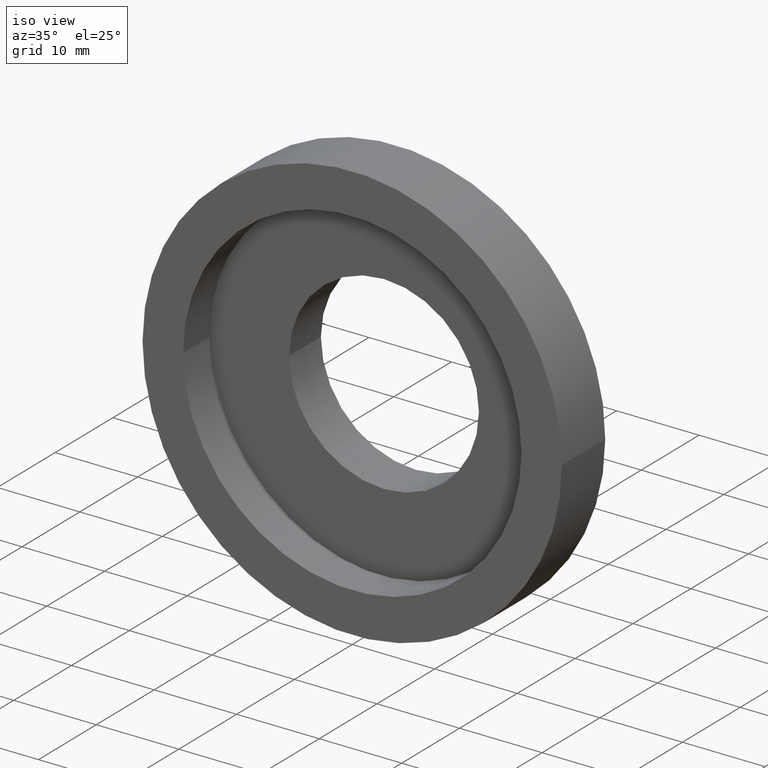
[diagram: clean part render]
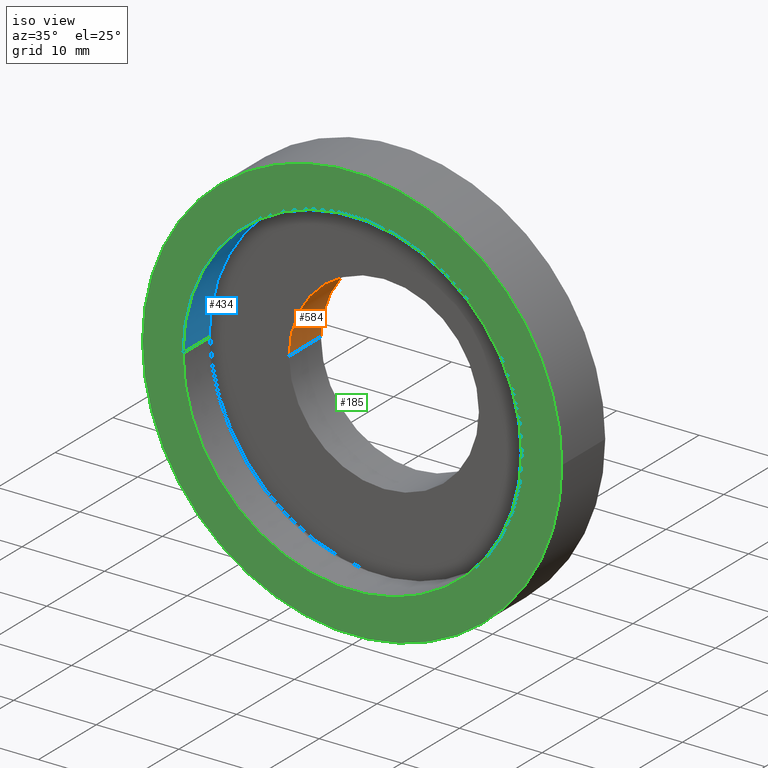
[diagram: same view with three faces highlighted in distinct colors, each labeled with its STEP entity id]
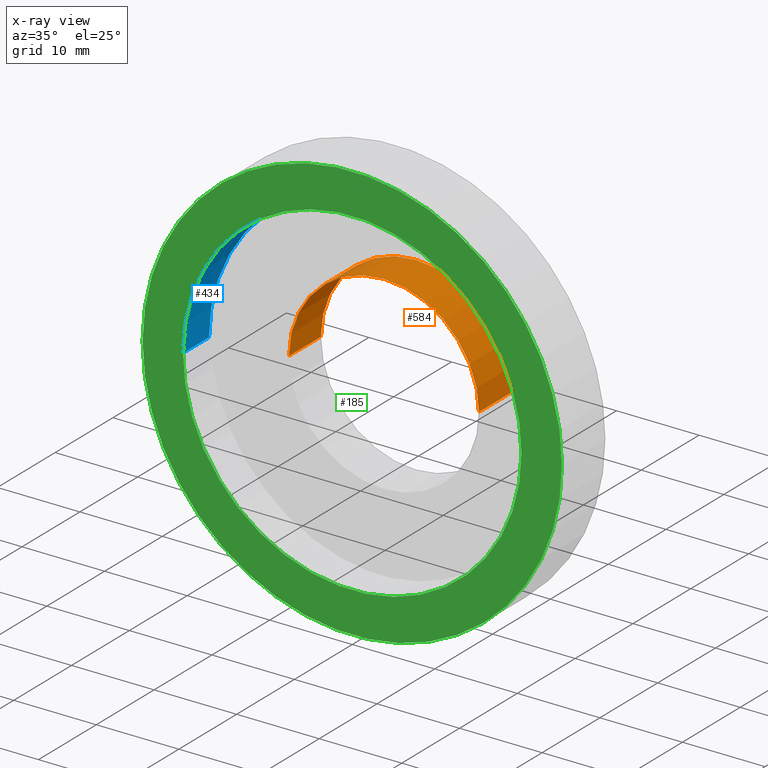
[diagram: x-ray of the same camera — body ghosted, the three highlighted faces saturated]
A machine part, iso view with three faces highlighted in distinct colors.
The next image is the same camera in x-ray (body ghosted, the three faces saturated) — at least one of them is partly hidden behind the body in this view.
Their STEP definitions:

[orange] entity #584 — the highlighted cylindrical surface (partial cylindrical patch) has radius 11.5 mm, axis along (-0, 1, -0).
#6 = ORIENTED_EDGE ( 'NONE', *, *, #30, .T. ) ;
#13 = ORIENTED_EDGE ( 'NONE', *, *, #354, .T. ) ;
#30 = EDGE_CURVE ( 'NONE', #615, #35, #529, .T. ) ;
#34 = CYLINDRICAL_SURFACE ( 'NONE', #285, 11.50000000000000000 ) ;
#35 = VERTEX_POINT ( 'NONE', #273 ) ;
#48 = CARTESIAN_POINT ( 'NONE',  ( 0.0000000000000000000, 16.88601823708207700, 0.0000000000000000000 ) ) ;
#67 = AXIS2_PLACEMENT_3D ( 'NONE', #587, #241, #296 ) ;
#89 = CARTESIAN_POINT ( 'NONE',  ( -11.49999999999999800, 5.499999999999996400, 0.0000000000000000000 ) ) ;
#91 = AXIS2_PLACEMENT_3D ( 'NONE', #440, #583, #335 ) ;
#93 = VECTOR ( 'NONE', #538, 1000.000000000000000 ) ;
#126 = CIRCLE ( 'NONE', #67, 11.50000000000000200 ) ;
#131 = ORIENTED_EDGE ( 'NONE', *, *, #324, .F. ) ;
#164 = CARTESIAN_POINT ( 'NONE',  ( -11.50000000000000000, 16.88601823708207700, 0.0000000000000000000 ) ) ;
#171 = EDGE_LOOP ( 'NONE', ( #376, #131, #6, #13 ) ) ;
#181 = CARTESIAN_POINT ( 'NONE',  ( 11.50000000000000000, 16.88601823708207700, 1.408343819019456200E-015 ) ) ;
#241 = DIRECTION ( 'NONE',  ( -1.224646799147351000E-016, 1.000000000000000000, -0.0000000000000000000 ) ) ;
#242 = VECTOR ( 'NONE', #267, 1000.000000000000000 ) ;
#267 = DIRECTION ( 'NONE',  ( -1.224646799147351000E-016, 1.000000000000000000, -0.0000000000000000000 ) ) ;
#273 = CARTESIAN_POINT ( 'NONE',  ( -11.50000000000000200, 10.99999999999999500, 0.0000000000000000000 ) ) ;
#278 = EDGE_CURVE ( 'NONE', #402, #467, #326, .T. ) ;
#285 = AXIS2_PLACEMENT_3D ( 'NONE', #48, #623, #371 ) ;
#296 = DIRECTION ( 'NONE',  ( -1.000000000000000000, -1.508455196501571200E-016, 0.0000000000000000000 ) ) ;
#303 = CARTESIAN_POINT ( 'NONE',  ( 11.50000000000000200, 5.500000000000000000, 1.408343819019456600E-015 ) ) ;
#324 = EDGE_CURVE ( 'NONE', #615, #402, #592, .T. ) ;
#326 = LINE ( 'NONE', #181, #93 ) ;
#335 = DIRECTION ( 'NONE',  ( -1.000000000000000000, -1.508455196501571400E-016, 0.0000000000000000000 ) ) ;
#354 = EDGE_CURVE ( 'NONE', #35, #467, #126, .T. ) ;
#359 = CARTESIAN_POINT ( 'NONE',  ( 11.50000000000000200, 10.99999999999999800, 1.408343819019456600E-015 ) ) ;
#371 = DIRECTION ( 'NONE',  ( -1.000000000000000000, 0.0000000000000000000, 0.0000000000000000000 ) ) ;
#376 = ORIENTED_EDGE ( 'NONE', *, *, #278, .F. ) ;
#402 = VERTEX_POINT ( 'NONE', #303 ) ;
#440 = CARTESIAN_POINT ( 'NONE',  ( 1.394385078907593000E-015, 5.499999999999998200, 0.0000000000000000000 ) ) ;
#467 = VERTEX_POINT ( 'NONE', #359 ) ;
#529 = LINE ( 'NONE', #164, #242 ) ;
#538 = DIRECTION ( 'NONE',  ( -1.224646799147351000E-016, 1.000000000000000000, -0.0000000000000000000 ) ) ;
#548 = FACE_OUTER_BOUND ( 'NONE', #171, .T. ) ;
#583 = DIRECTION ( 'NONE',  ( -1.224646799147351000E-016, 1.000000000000000000, -0.0000000000000000000 ) ) ;
#584 = ADVANCED_FACE ( 'NONE', ( #548 ), #34, .F. ) ;
#587 = CARTESIAN_POINT ( 'NONE',  ( 7.208293393765502500E-016, 10.99999999999999600, 0.0000000000000000000 ) ) ;
#592 = CIRCLE ( 'NONE', #91, 11.50000000000000000 ) ;
#615 = VERTEX_POINT ( 'NONE', #89 ) ;
#623 = DIRECTION ( 'NONE',  ( -1.224646799147351000E-016, 1.000000000000000000, -0.0000000000000000000 ) ) ;

[blue] entity #434 — the highlighted cylindrical surface (partial cylindrical patch) has radius 20.5 mm, axis along (-0, 1, -0).
#7 = CARTESIAN_POINT ( 'NONE',  ( -20.50000000000000400, 16.88601823708207300, 0.0000000000000000000 ) ) ;
#25 = VERTEX_POINT ( 'NONE', #314 ) ;
#32 = DIRECTION ( 'NONE',  ( -1.000000000000000000, -1.692413147294445700E-016, 0.0000000000000000000 ) ) ;
#45 = CIRCLE ( 'NONE', #87, 20.50000000000000000 ) ;
#64 = VERTEX_POINT ( 'NONE', #170 ) ;
#68 = CARTESIAN_POINT ( 'NONE',  ( 2.067940818438636500E-015, -3.469446951953614200E-015, 0.0000000000000000000 ) ) ;
#87 = AXIS2_PLACEMENT_3D ( 'NONE', #68, #104, #498 ) ;
#98 = ORIENTED_EDGE ( 'NONE', *, *, #163, .T. ) ;
#104 = DIRECTION ( 'NONE',  ( -1.224646799147351000E-016, 1.000000000000000000, -0.0000000000000000000 ) ) ;
#110 = VERTEX_POINT ( 'NONE', #565 ) ;
#129 = CARTESIAN_POINT ( 'NONE',  ( 1.516849758822328100E-015, 4.499999999999999100, 0.0000000000000000000 ) ) ;
#140 = DIRECTION ( 'NONE',  ( -1.224646799147351000E-016, 1.000000000000000000, -0.0000000000000000000 ) ) ;
#142 = AXIS2_PLACEMENT_3D ( 'NONE', #129, #378, #368 ) ;
#152 = ORIENTED_EDGE ( 'NONE', *, *, #295, .T. ) ;
#163 = EDGE_CURVE ( 'NONE', #167, #110, #329, .T. ) ;
#167 = VERTEX_POINT ( 'NONE', #216 ) ;
#170 = CARTESIAN_POINT ( 'NONE',  ( 20.50000000000000400, -9.589210137015444400E-016, 2.510525938252074500E-015 ) ) ;
#216 = CARTESIAN_POINT ( 'NONE',  ( -20.50000000000000400, 4.499999999999996400, 0.0000000000000000000 ) ) ;
#226 = VECTOR ( 'NONE', #382, 1000.000000000000000 ) ;
#227 = CARTESIAN_POINT ( 'NONE',  ( 20.50000000000000400, 16.88601823708208000, 2.510525938252074500E-015 ) ) ;
#237 = ORIENTED_EDGE ( 'NONE', *, *, #392, .F. ) ;
#295 = EDGE_CURVE ( 'NONE', #25, #167, #318, .T. ) ;
#308 = EDGE_CURVE ( 'NONE', #64, #110, #351, .T. ) ;
#314 = CARTESIAN_POINT ( 'NONE',  ( -20.49999999999999600, -5.979972890205683900E-015, 0.0000000000000000000 ) ) ;
#318 = LINE ( 'NONE', #7, #226 ) ;
#329 = CIRCLE ( 'NONE', #142, 20.50000000000000400 ) ;
#351 = LINE ( 'NONE', #227, #568 ) ;
#368 = DIRECTION ( 'NONE',  ( -1.000000000000000000, -1.269309860470834200E-016, 0.0000000000000000000 ) ) ;
#378 = DIRECTION ( 'NONE',  ( -1.224646799147351000E-016, 1.000000000000000000, -0.0000000000000000000 ) ) ;
#382 = DIRECTION ( 'NONE',  ( -1.224646799147351000E-016, 1.000000000000000000, -0.0000000000000000000 ) ) ;
#392 = EDGE_CURVE ( 'NONE', #25, #64, #45, .T. ) ;
#393 = CARTESIAN_POINT ( 'NONE',  ( 0.0000000000000000000, 16.88601823708207700, 0.0000000000000000000 ) ) ;
#400 = AXIS2_PLACEMENT_3D ( 'NONE', #393, #453, #32 ) ;
#420 = EDGE_LOOP ( 'NONE', ( #523, #237, #152, #98 ) ) ;
#434 = ADVANCED_FACE ( 'NONE', ( #537 ), #544, .F. ) ;
#453 = DIRECTION ( 'NONE',  ( -1.224646799147351000E-016, 1.000000000000000000, -0.0000000000000000000 ) ) ;
#498 = DIRECTION ( 'NONE',  ( -1.000000000000000000, -1.224646799147351200E-016, 0.0000000000000000000 ) ) ;
#523 = ORIENTED_EDGE ( 'NONE', *, *, #308, .F. ) ;
#537 = FACE_OUTER_BOUND ( 'NONE', #420, .T. ) ;
#544 = CYLINDRICAL_SURFACE ( 'NONE', #400, 20.50000000000000400 ) ;
#565 = CARTESIAN_POINT ( 'NONE',  ( 20.50000000000000400, 4.500000000000001800, 2.510525938252074500E-015 ) ) ;
#568 = VECTOR ( 'NONE', #140, 1000.000000000000000 ) ;

[green] entity #185 — the highlighted planar face has unit normal (-0, 1, 0).
#1 = EDGE_LOOP ( 'NONE', ( #17, #119 ) ) ;
#15 = DIRECTION ( 'NONE',  ( -1.000000000000000000, -1.224646799147351000E-016, 0.0000000000000000000 ) ) ;
#17 = ORIENTED_EDGE ( 'NONE', *, *, #356, .F. ) ;
#25 = VERTEX_POINT ( 'NONE', #314 ) ;
#26 = DIRECTION ( 'NONE',  ( -1.000000000000000000, -1.224646799147351000E-016, 0.0000000000000000000 ) ) ;
#38 = AXIS2_PLACEMENT_3D ( 'NONE', #202, #157, #26 ) ;
#45 = CIRCLE ( 'NONE', #87, 20.50000000000000000 ) ;
#59 = CARTESIAN_POINT ( 'NONE',  ( 25.39999999999999900, -3.588440821193433400E-016, 3.110602869834276900E-015 ) ) ;
#64 = VERTEX_POINT ( 'NONE', #170 ) ;
#68 = CARTESIAN_POINT ( 'NONE',  ( 2.067940818438636500E-015, -3.469446951953614200E-015, 0.0000000000000000000 ) ) ;
#83 = CARTESIAN_POINT ( 'NONE',  ( 25.39999999999999900, 4.336808689942011800E-016, 0.0000000000000000000 ) ) ;
#87 = AXIS2_PLACEMENT_3D ( 'NONE', #68, #104, #498 ) ;
#104 = DIRECTION ( 'NONE',  ( -1.224646799147351000E-016, 1.000000000000000000, -0.0000000000000000000 ) ) ;
#113 = CARTESIAN_POINT ( 'NONE',  ( 2.067940818438636500E-015, -3.469446951953614200E-015, 0.0000000000000000000 ) ) ;
#119 = ORIENTED_EDGE ( 'NONE', *, *, #396, .F. ) ;
#153 = CIRCLE ( 'NONE', #38, 25.39999999999999500 ) ;
#157 = DIRECTION ( 'NONE',  ( -1.224646799147351000E-016, 1.000000000000000000, -0.0000000000000000000 ) ) ;
#159 = AXIS2_PLACEMENT_3D ( 'NONE', #83, #520, #218 ) ;
#166 = PLANE ( 'NONE',  #159 ) ;
#169 = CARTESIAN_POINT ( 'NONE',  ( 2.067940818438636500E-015, -3.469446951953614200E-015, 0.0000000000000000000 ) ) ;
#170 = CARTESIAN_POINT ( 'NONE',  ( 20.50000000000000400, -9.589210137015444400E-016, 2.510525938252074500E-015 ) ) ;
#185 = ADVANCED_FACE ( 'NONE', ( #606, #417 ), #166, .F. ) ;
#202 = CARTESIAN_POINT ( 'NONE',  ( 2.067940818438636500E-015, -3.469446951953614200E-015, 0.0000000000000000000 ) ) ;
#218 = DIRECTION ( 'NONE',  ( -1.000000000000000000, -1.224646799147351000E-016, 0.0000000000000000000 ) ) ;
#291 = DIRECTION ( 'NONE',  ( -1.224646799147351000E-016, 1.000000000000000000, -0.0000000000000000000 ) ) ;
#314 = CARTESIAN_POINT ( 'NONE',  ( -20.49999999999999600, -5.979972890205683900E-015, 0.0000000000000000000 ) ) ;
#346 = VERTEX_POINT ( 'NONE', #59 ) ;
#356 = EDGE_CURVE ( 'NONE', #505, #346, #494, .T. ) ;
#362 = ORIENTED_EDGE ( 'NONE', *, *, #605, .T. ) ;
#367 = DIRECTION ( 'NONE',  ( -1.224646799147351000E-016, 1.000000000000000000, -0.0000000000000000000 ) ) ;
#379 = CIRCLE ( 'NONE', #600, 20.50000000000000000 ) ;
#380 = DIRECTION ( 'NONE',  ( -1.000000000000000000, -1.224646799147351200E-016, 0.0000000000000000000 ) ) ;
#392 = EDGE_CURVE ( 'NONE', #25, #64, #45, .T. ) ;
#396 = EDGE_CURVE ( 'NONE', #346, #505, #153, .T. ) ;
#417 = FACE_BOUND ( 'NONE', #511, .T. ) ;
#494 = CIRCLE ( 'NONE', #550, 25.39999999999999500 ) ;
#498 = DIRECTION ( 'NONE',  ( -1.000000000000000000, -1.224646799147351200E-016, 0.0000000000000000000 ) ) ;
#505 = VERTEX_POINT ( 'NONE', #554 ) ;
#511 = EDGE_LOOP ( 'NONE', ( #612, #362 ) ) ;
#520 = DIRECTION ( 'NONE',  ( -1.224646799147351000E-016, 1.000000000000000000, 0.0000000000000000000 ) ) ;
#550 = AXIS2_PLACEMENT_3D ( 'NONE', #113, #291, #15 ) ;
#554 = CARTESIAN_POINT ( 'NONE',  ( -25.39999999999999100, -6.580049821787884700E-015, 0.0000000000000000000 ) ) ;
#600 = AXIS2_PLACEMENT_3D ( 'NONE', #169, #367, #380 ) ;
#605 = EDGE_CURVE ( 'NONE', #64, #25, #379, .T. ) ;
#606 = FACE_OUTER_BOUND ( 'NONE', #1, .T. ) ;
#612 = ORIENTED_EDGE ( 'NONE', *, *, #392, .T. ) ;